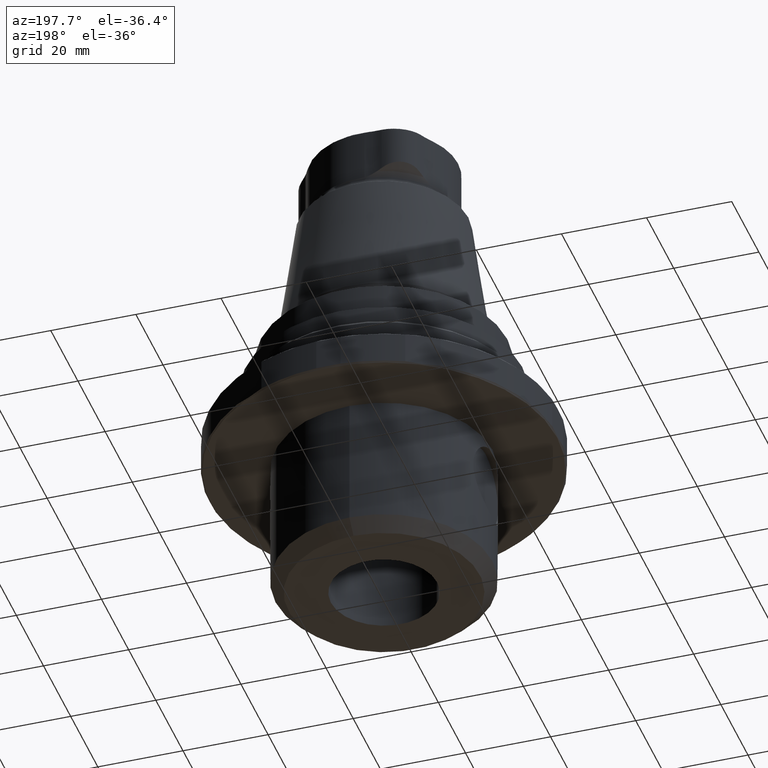
[diagram: clean part render]
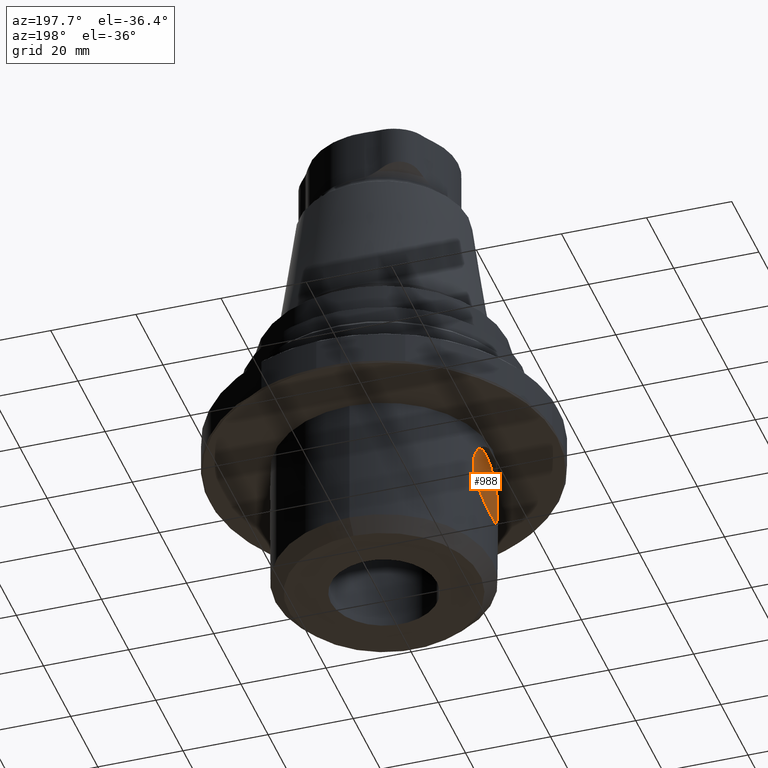
[diagram: same view with one face highlighted and labeled with its STEP entity id]
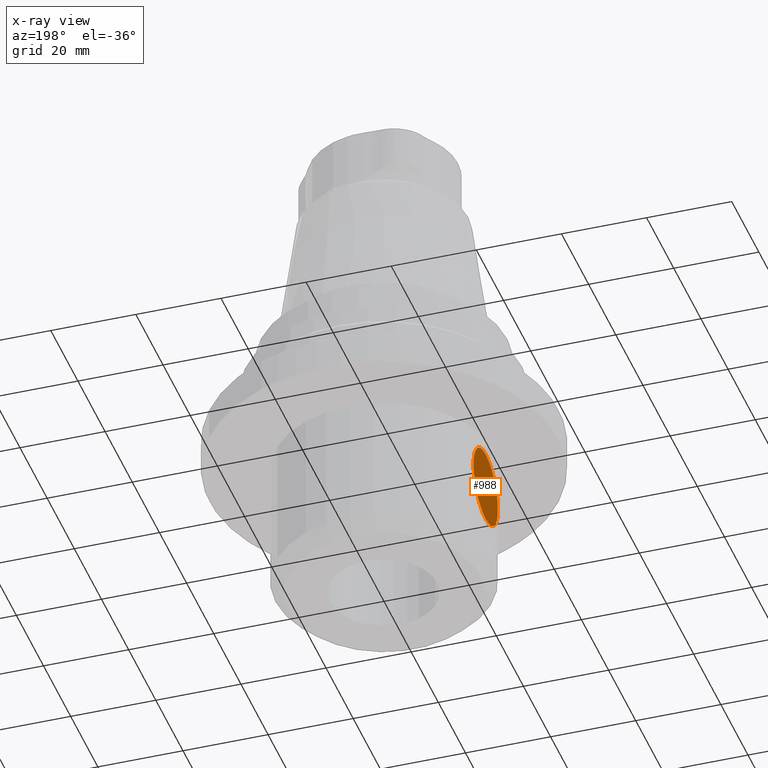
[diagram: x-ray of the same camera — body ghosted, the highlighted face saturated]
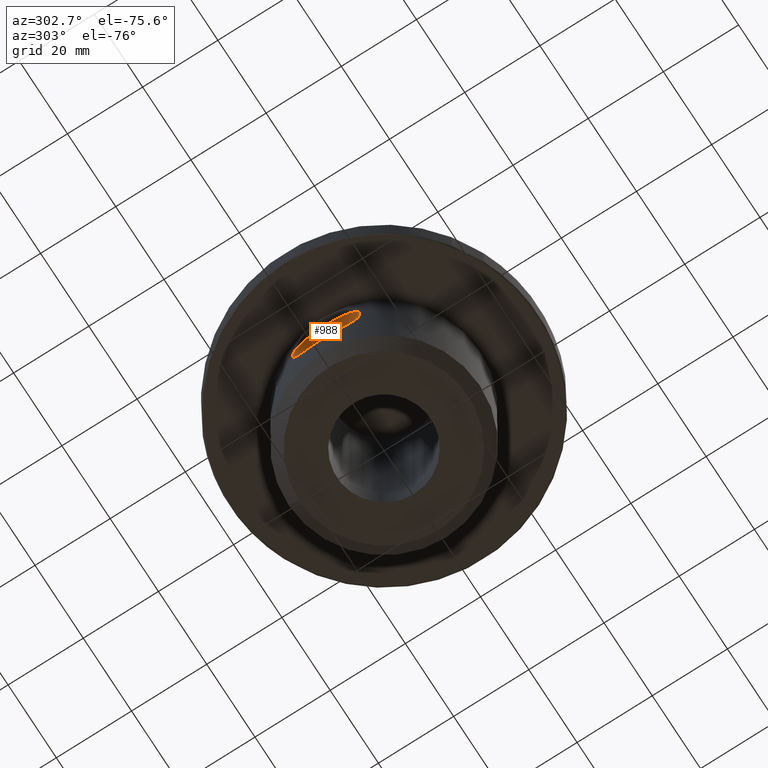
[diagram: same view with one face highlighted and labeled with its STEP entity id]
A machine part, auxiliary view. The second image highlights one B-rep face of the part: STEP entity #988.
The next image is the same camera in x-ray: the body ghosted, the highlighted face saturated — about 0% of this face is hidden behind the body in this view.
A second angle (auxiliary view) of the same face is appended — the face is thin or edge-on in the first view.
In plain terms, the highlighted planar face has unit normal (1, 0, 0).
Its self-contained STEP definition (entity closure, byte-faithful):
#35=PLANE('',#1122);
#109=CIRCLE('',#1119,8.99999999999999);
#110=CIRCLE('',#1121,8.99999999999999);
#113=LINE('',#1420,#143);
#114=LINE('',#1433,#144);
#143=VECTOR('',#1132,1000.);
#144=VECTOR('',#1133,1000.);
#423=ORIENTED_EDGE('',*,*,#438,.T.);
#424=ORIENTED_EDGE('',*,*,#563,.F.);
#425=ORIENTED_EDGE('',*,*,#436,.T.);
#426=ORIENTED_EDGE('',*,*,#562,.F.);
#436=EDGE_CURVE('',#568,#566,#113,.F.);
#438=EDGE_CURVE('',#567,#569,#114,.T.);
#562=EDGE_CURVE('',#567,#566,#109,.T.);
#563=EDGE_CURVE('',#568,#569,#110,.T.);
#566=VERTEX_POINT('',#1418);
#567=VERTEX_POINT('',#1419);
#568=VERTEX_POINT('',#1421);
#569=VERTEX_POINT('',#1432);
#797=EDGE_LOOP('',(#423,#424,#425,#426));
#892=FACE_BOUND('',#797,.T.);
#988=ADVANCED_FACE('',(#892),#35,.F.);
#1119=AXIS2_PLACEMENT_3D('',#1872,#1388,#1389);
#1121=AXIS2_PLACEMENT_3D('',#1874,#1392,#1393);
#1122=AXIS2_PLACEMENT_3D('',#1875,#1394,#1395);
#1132=DIRECTION('',(0.,0.,-1.));
#1133=DIRECTION('',(0.,0.,-1.));
#1388=DIRECTION('',(1.,0.,0.));
#1389=DIRECTION('',(0.,0.,-1.));
#1392=DIRECTION('',(1.,0.,0.));
#1393=DIRECTION('',(0.,0.,-1.));
#1394=DIRECTION('',(1.,0.,0.));
#1395=DIRECTION('',(0.,0.,-1.));
#1418=CARTESIAN_POINT('',(-23.9,-8.89044430835712,-17.5999999999999));
#1419=CARTESIAN_POINT('',(-23.9,8.89044430835712,-17.5999999999999));
#1420=CARTESIAN_POINT('',(-23.9,-8.89044430835712,-40.));
#1421=CARTESIAN_POINT('',(-23.9,-8.89044430835712,-20.4000000000001));
#1432=CARTESIAN_POINT('',(-23.9,8.89044430835712,-20.4000000000001));
#1433=CARTESIAN_POINT('',(-23.9,8.89044430835712,-40.));
#1872=CARTESIAN_POINT('',(-23.9,0.,-19.));
#1874=CARTESIAN_POINT('',(-23.9,0.,-19.));
#1875=CARTESIAN_POINT('',(-23.9,0.,-19.));